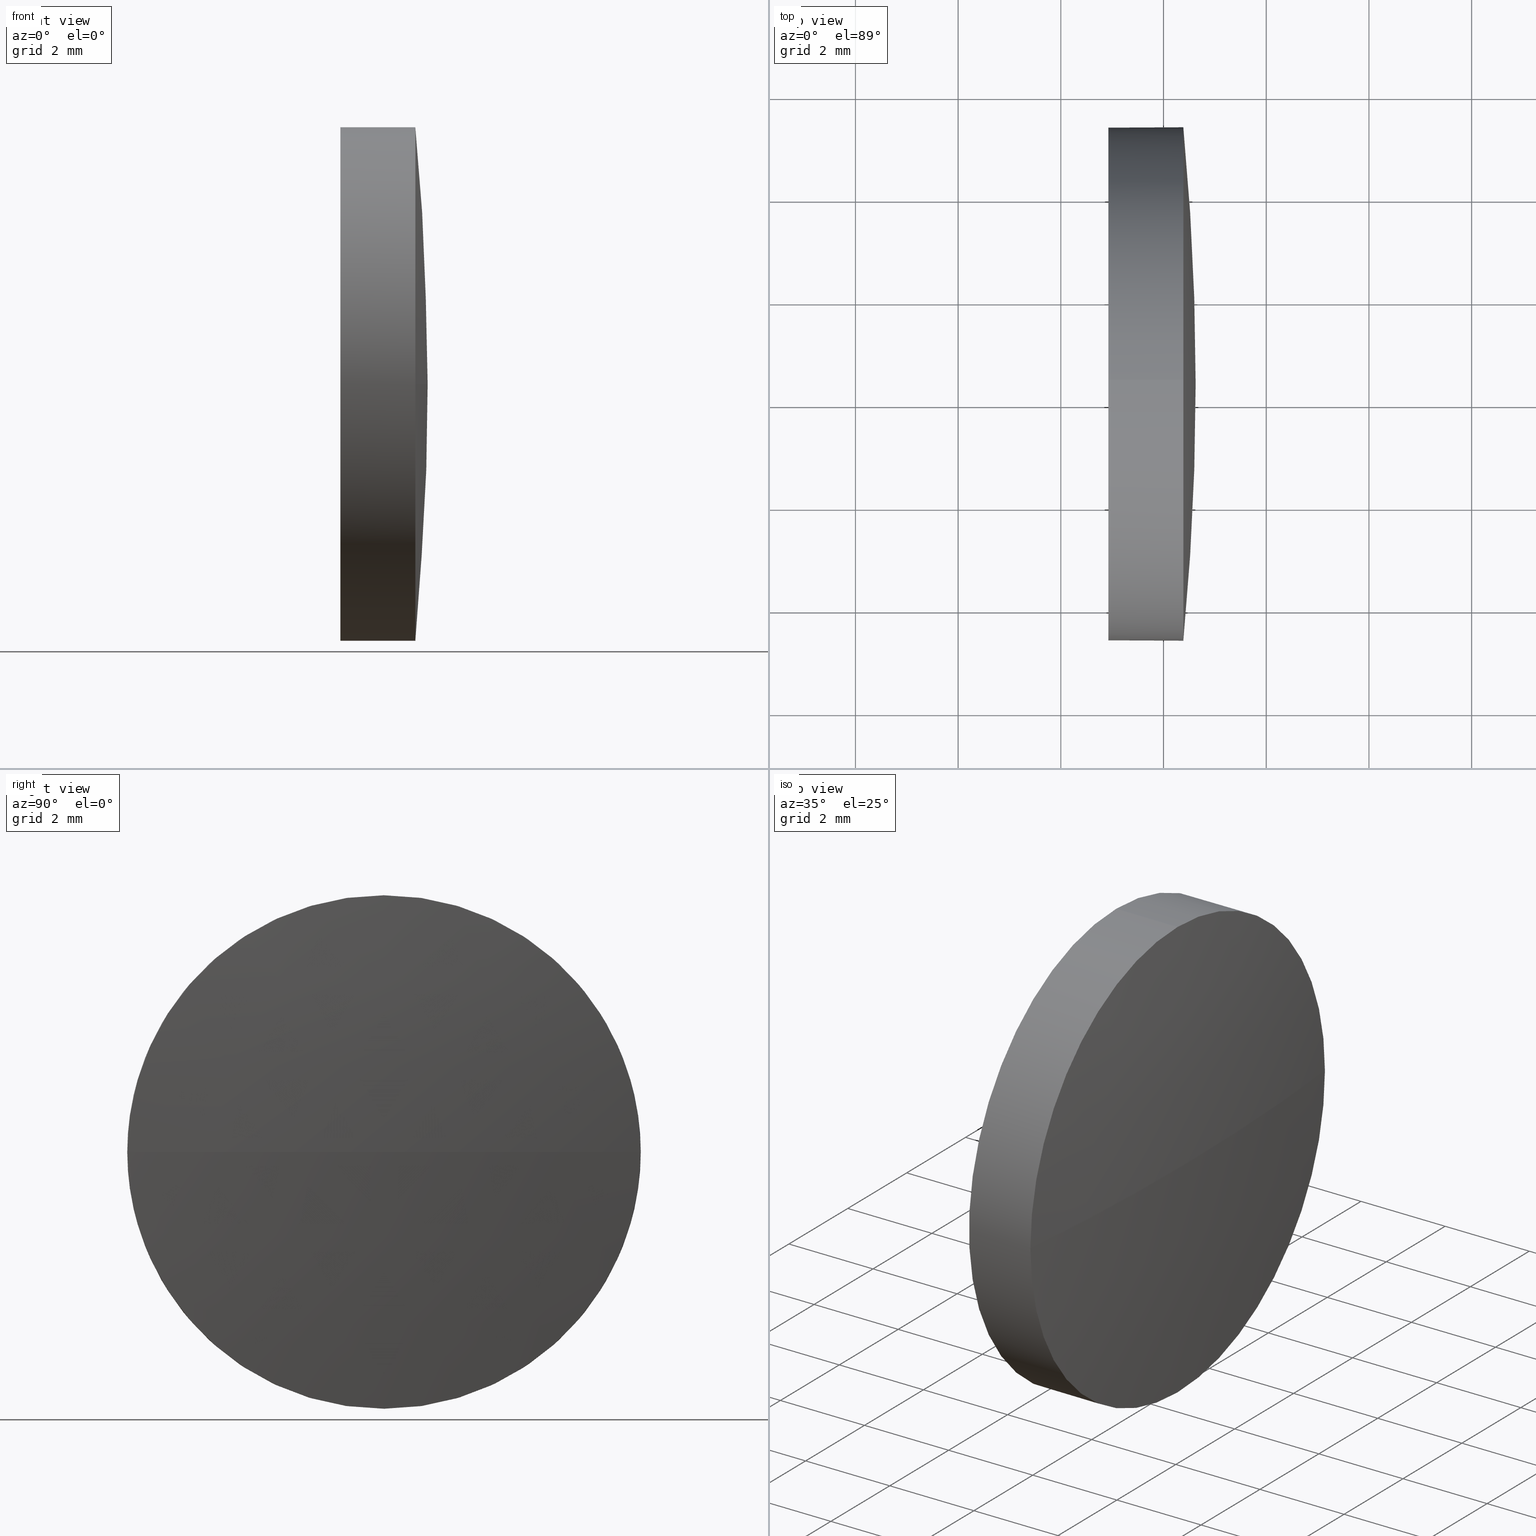
[diagram: canonical four-view strip — front | top / right | iso, engineering-drawing reading convention]
A machine part, canonical four-view strip (front | top / right | iso — engineering-drawing reading convention). The complete STEP part file that produces these views, byte-faithful:
ISO-10303-21;
HEADER;
FILE_DESCRIPTION (( 'STEP AP214' ),
    '1' );
FILE_NAME ('100108.STEP',
    '2019-05-14T01:18:25',
    ( '' ),
    ( '' ),
    'SwSTEP 2.0',
    'SolidWorks 2016',
    '' );
FILE_SCHEMA (( 'AUTOMOTIVE_DESIGN' ));
ENDSEC;

DATA;
#1 = AXIS2_PLACEMENT_3D ( 'NONE', #62, #94, #125 ) ;
#2 = ORIENTED_EDGE ( 'NONE', *, *, #179, .T. ) ;
#3 = CARTESIAN_POINT ( 'NONE',  ( 421.9839904776718500, 168.3692814147028700, 5.000000000000004400 ) ) ;
#4 = DIRECTION ( 'NONE',  ( 0.0000000000000000000, 1.000000000000000000, 0.0000000000000000000 ) ) ;
#5 = EDGE_CURVE ( 'NONE', #13, #111, #172, .T. ) ;
#6 = EDGE_LOOP ( 'NONE', ( #61, #147 ) ) ;
#7 = FILL_AREA_STYLE_COLOUR ( '', #102 ) ;
#8 = LINE ( 'NONE', #20, #133 ) ;
#9 =( LENGTH_UNIT ( ) NAMED_UNIT ( * ) SI_UNIT ( .MILLI., .METRE. ) );
#10 = VERTEX_POINT ( 'NONE', #74 ) ;
#11 = DIRECTION ( 'NONE',  ( -1.000000000000000000, -0.0000000000000000000, -0.0000000000000000000 ) ) ;
#12 = CARTESIAN_POINT ( 'NONE',  ( 372.4222076161130400, 168.3692814147027000, 0.0000000000000000000 ) ) ;
#13 = VERTEX_POINT ( 'NONE', #91 ) ;
#14 =( LENGTH_UNIT ( ) NAMED_UNIT ( * ) SI_UNIT ( .MILLI., .METRE. ) );
#15 = CIRCLE ( 'NONE', #58, 5.000000000000004400 ) ;
#16 = EDGE_CURVE ( 'NONE', #71, #160, #50, .T. ) ;
#17 = SHAPE_DEFINITION_REPRESENTATION ( #100, #186 ) ;
#18 = AXIS2_PLACEMENT_3D ( 'NONE', #124, #11, #165 ) ;
#19 = ORIENTED_EDGE ( 'NONE', *, *, #16, .F. ) ;
#20 = CARTESIAN_POINT ( 'NONE',  ( 421.9839904776718500, 168.3692814147028700, -5.000000000000004400 ) ) ;
#21 = CARTESIAN_POINT ( 'NONE',  ( 372.4222076161130400, 168.3692814147027000, 0.0000000000000000000 ) ) ;
#22 = DIRECTION ( 'NONE',  ( -1.000000000000000000, -0.0000000000000000000, -0.0000000000000000000 ) ) ;
#23 = CARTESIAN_POINT ( 'NONE',  ( 422.9255409494463700, 168.3692814147028700, 0.0000000000000000000 ) ) ;
#24 = CIRCLE ( 'NONE', #173, 52.20333333333326900 ) ;
#25 = DIRECTION ( 'NONE',  ( 0.0000000000000000000, 0.0000000000000000000, -1.000000000000000000 ) ) ;
#26 = AXIS2_PLACEMENT_3D ( 'NONE', #104, #163, #4 ) ;
#27 = CIRCLE ( 'NONE', #18, 5.000000000000004400 ) ;
#28 = ORIENTED_EDGE ( 'NONE', *, *, #60, .T. ) ;
#29 = APPLICATION_PROTOCOL_DEFINITION ( 'draft international standard', 'automotive_design', 1998, #143 ) ;
#30 = ADVANCED_FACE ( 'NONE', ( #78 ), #121, .T. ) ;
#31 = FACE_OUTER_BOUND ( 'NONE', #174, .T. ) ;
#32 = AXIS2_PLACEMENT_3D ( 'NONE', #21, #138, #141 ) ;
#33 = MANIFOLD_SOLID_BREP ( '��ת1', #162 ) ;
#34 = ORIENTED_EDGE ( 'NONE', *, *, #16, .T. ) ;
#35 = PRODUCT_DEFINITION_FORMATION_WITH_SPECIFIED_SOURCE ( '�κ�', '', #38, .NOT_KNOWN. ) ;
#36 = CARTESIAN_POINT ( 'NONE',  ( 424.6255409494463000, 168.3692814147027000, 0.0000000000000000000 ) ) ;
#37 = CARTESIAN_POINT ( 'NONE',  ( 422.9255409494463700, 168.3692814147028700, -5.000000000000004400 ) ) ;
#38 = PRODUCT ( '100108', '100108', '', ( #66 ) ) ;
#39 = DIRECTION ( 'NONE',  ( -1.000000000000000000, -0.0000000000000000000, -0.0000000000000000000 ) ) ;
#40 =( NAMED_UNIT ( * ) PLANE_ANGLE_UNIT ( ) SI_UNIT ( $, .RADIAN. ) );
#41 = DIRECTION ( 'NONE',  ( 0.0000000000000000000, 0.0000000000000000000, 1.000000000000000000 ) ) ;
#42 = VECTOR ( 'NONE', #145, 1000.000000000000000 ) ;
#43 = EDGE_CURVE ( 'NONE', #111, #176, #184, .T. ) ;
#44 = ORIENTED_EDGE ( 'NONE', *, *, #103, .F. ) ;
#45 = PRODUCT_DEFINITION_CONTEXT ( 'detailed design', #112, 'design' ) ;
#46 = EDGE_CURVE ( 'NONE', #71, #176, #8, .T. ) ;
#47 = DIRECTION ( 'NONE',  ( -1.000000000000000000, -0.0000000000000000000, -0.0000000000000000000 ) ) ;
#48 = EDGE_CURVE ( 'NONE', #106, #160, #24, .T. ) ;
#49 = SURFACE_STYLE_USAGE ( .BOTH. , #177 ) ;
#50 = CIRCLE ( 'NONE', #126, 5.000000000000004400 ) ;
#51 = DIRECTION ( 'NONE',  ( -1.000000000000000000, -0.0000000000000000000, -0.0000000000000000000 ) ) ;
#52 = CARTESIAN_POINT ( 'NONE',  ( 421.9839904776718500, 168.3692814147028700, 0.0000000000000000000 ) ) ;
#53 = CARTESIAN_POINT ( 'NONE',  ( 424.3855409494462900, 163.3692814147027000, -6.123233995736758400E-016 ) ) ;
#54 =( NAMED_UNIT ( * ) SI_UNIT ( $, .STERADIAN. ) SOLID_ANGLE_UNIT ( ) );
#55 = ORIENTED_EDGE ( 'NONE', *, *, #75, .F. ) ;
#56 = CIRCLE ( 'NONE', #1, 5.000000000000004400 ) ;
#57 = FACE_OUTER_BOUND ( 'NONE', #129, .T. ) ;
#58 = AXIS2_PLACEMENT_3D ( 'NONE', #107, #166, #139 ) ;
#59 = AXIS2_PLACEMENT_3D ( 'NONE', #158, #113, #114 ) ;
#60 = EDGE_CURVE ( 'NONE', #13, #10, #56, .T. ) ;
#61 = ORIENTED_EDGE ( 'NONE', *, *, #43, .T. ) ;
#62 = CARTESIAN_POINT ( 'NONE',  ( 424.3855409494462900, 168.3692814147028700, 0.0000000000000000000 ) ) ;
#63 = DIRECTION ( 'NONE',  ( 0.0000000000000000000, 0.0000000000000000000, 1.000000000000000000 ) ) ;
#64 = PLANE ( 'NONE',  #76 ) ;
#65 = AXIS2_PLACEMENT_3D ( 'NONE', #52, #51, #63 ) ;
#66 = PRODUCT_CONTEXT ( 'NONE', #143, 'mechanical' ) ;
#67 = ADVANCED_FACE ( 'NONE', ( #31 ), #120, .T. ) ;
#68 = ORIENTED_EDGE ( 'NONE', *, *, #103, .T. ) ;
#69 = ADVANCED_FACE ( 'NONE', ( #164 ), #87, .T. ) ;
#70 = STYLED_ITEM ( 'NONE', ( #149 ), #33 ) ;
#71 = VERTEX_POINT ( 'NONE', #136 ) ;
#72 = UNCERTAINTY_MEASURE_WITH_UNIT (LENGTH_MEASURE( 1.000000000000000100E-005 ), #9, 'distance_accuracy_value', 'NONE');
#73 =( GEOMETRIC_REPRESENTATION_CONTEXT ( 3 ) GLOBAL_UNCERTAINTY_ASSIGNED_CONTEXT ( ( #99 ) ) GLOBAL_UNIT_ASSIGNED_CONTEXT ( ( #14, #86, #54 ) ) REPRESENTATION_CONTEXT ( 'NONE', 'WORKASPACE' ) );
#74 = CARTESIAN_POINT ( 'NONE',  ( 424.3855409494462900, 173.3692814147028700, 0.0000000000000000000 ) ) ;
#75 = EDGE_CURVE ( 'NONE', #10, #71, #27, .T. ) ;
#76 = AXIS2_PLACEMENT_3D ( 'NONE', #175, #80, #25 ) ;
#77 = AXIS2_PLACEMENT_3D ( 'NONE', #12, #108, #79 ) ;
#78 = FACE_OUTER_BOUND ( 'NONE', #88, .T. ) ;
#79 = DIRECTION ( 'NONE',  ( 1.000000000000000000, 0.0000000000000000000, 0.0000000000000000000 ) ) ;
#80 = DIRECTION ( 'NONE',  ( 1.000000000000000000, 0.0000000000000000000, 0.0000000000000000000 ) ) ;
#81 = PRODUCT_RELATED_PRODUCT_CATEGORY ( 'part', '', ( #38 ) ) ;
#82 = CARTESIAN_POINT ( 'NONE',  ( 421.9839904776718500, 168.3692814147028700, 0.0000000000000000000 ) ) ;
#83 = PRESENTATION_STYLE_ASSIGNMENT (( #159 ) ) ;
#84 = PRESENTATION_LAYER_ASSIGNMENT (  '', '', ( #70 ) ) ;
#85 = DIRECTION ( 'NONE',  ( 0.0000000000000000000, 0.0000000000000000000, 1.000000000000000000 ) ) ;
#86 =( NAMED_UNIT ( * ) PLANE_ANGLE_UNIT ( ) SI_UNIT ( $, .RADIAN. ) );
#87 = CYLINDRICAL_SURFACE ( 'NONE', #65, 5.000000000000004400 ) ;
#88 = EDGE_LOOP ( 'NONE', ( #115, #68, #181, #90 ) ) ;
#89 = CIRCLE ( 'NONE', #59, 5.000000000000004400 ) ;
#90 = ORIENTED_EDGE ( 'NONE', *, *, #179, .F. ) ;
#91 = CARTESIAN_POINT ( 'NONE',  ( 424.3855409494462900, 168.3692814147028700, 5.000000000000004400 ) ) ;
#92 = ORIENTED_EDGE ( 'NONE', *, *, #75, .T. ) ;
#93 = DIRECTION ( 'NONE',  ( -1.000000000000000000, -0.0000000000000000000, -0.0000000000000000000 ) ) ;
#94 = DIRECTION ( 'NONE',  ( -1.000000000000000000, -0.0000000000000000000, -0.0000000000000000000 ) ) ;
#95 = EDGE_CURVE ( 'NONE', #176, #111, #15, .T. ) ;
#96 = SURFACE_SIDE_STYLE ('',( #132 ) ) ;
#97 = SURFACE_STYLE_FILL_AREA ( #119 ) ;
#98 = DIRECTION ( 'NONE',  ( 1.000000000000000000, 0.0000000000000000000, 0.0000000000000000000 ) ) ;
#99 = UNCERTAINTY_MEASURE_WITH_UNIT (LENGTH_MEASURE( 1.000000000000000100E-005 ), #14, 'distance_accuracy_value', 'NONE');
#100 = PRODUCT_DEFINITION_SHAPE ( 'NONE', 'NONE',  #155 ) ;
#101 = PRESENTATION_LAYER_ASSIGNMENT (  '', '', ( #137 ) ) ;
#102 = COLOUR_RGB ( '',1.000000000000000000, 1.000000000000000000, 1.000000000000000000 ) ;
#103 = EDGE_CURVE ( 'NONE', #106, #10, #161, .T. ) ;
#104 = CARTESIAN_POINT ( 'NONE',  ( 372.4222076161130400, 168.3692814147027000, 0.0000000000000000000 ) ) ;
#105 = MECHANICAL_DESIGN_GEOMETRIC_PRESENTATION_REPRESENTATION (  '', ( #137 ), #128 ) ;
#106 = VERTEX_POINT ( 'NONE', #36 ) ;
#107 = CARTESIAN_POINT ( 'NONE',  ( 422.9255409494463700, 168.3692814147028700, 0.0000000000000000000 ) ) ;
#108 = DIRECTION ( 'NONE',  ( -0.0000000000000000000, 0.0000000000000000000, 1.000000000000000000 ) ) ;
#109 = CARTESIAN_POINT ( 'NONE',  ( 372.4222076161130400, 168.3692814147027000, 0.0000000000000000000 ) ) ;
#110 = MECHANICAL_DESIGN_GEOMETRIC_PRESENTATION_REPRESENTATION (  '', ( #70 ), #151 ) ;
#111 = VERTEX_POINT ( 'NONE', #157 ) ;
#112 = APPLICATION_CONTEXT ( 'automotive_design' ) ;
#113 = DIRECTION ( 'NONE',  ( -1.000000000000000000, -0.0000000000000000000, -0.0000000000000000000 ) ) ;
#114 = DIRECTION ( 'NONE',  ( 0.0000000000000000000, 0.0000000000000000000, 1.000000000000000000 ) ) ;
#115 = ORIENTED_EDGE ( 'NONE', *, *, #48, .F. ) ;
#116 = ADVANCED_FACE ( 'NONE', ( #140 ), #64, .F. ) ;
#117 = AXIS2_PLACEMENT_3D ( 'NONE', #82, #39, #85 ) ;
#118 = ORIENTED_EDGE ( 'NONE', *, *, #46, .F. ) ;
#119 = FILL_AREA_STYLE ('',( #7 ) ) ;
#120 = SPHERICAL_SURFACE ( 'NONE', #32, 52.20333333333326900 ) ;
#121 = SPHERICAL_SURFACE ( 'NONE', #26, 52.20333333333326900 ) ;
#122 = AXIS2_PLACEMENT_3D ( 'NONE', #23, #22, #156 ) ;
#123 = ORIENTED_EDGE ( 'NONE', *, *, #5, .F. ) ;
#124 = CARTESIAN_POINT ( 'NONE',  ( 424.3855409494462900, 168.3692814147028700, 0.0000000000000000000 ) ) ;
#125 = DIRECTION ( 'NONE',  ( 0.0000000000000000000, 0.0000000000000000000, 1.000000000000000000 ) ) ;
#126 = AXIS2_PLACEMENT_3D ( 'NONE', #134, #47, #152 ) ;
#127 = DIRECTION ( 'NONE',  ( 0.0000000000000000000, 1.000000000000000000, 1.224646799147353200E-016 ) ) ;
#128 =( GEOMETRIC_REPRESENTATION_CONTEXT ( 3 ) GLOBAL_UNCERTAINTY_ASSIGNED_CONTEXT ( ( #178 ) ) GLOBAL_UNIT_ASSIGNED_CONTEXT ( ( #185, #40, #142 ) ) REPRESENTATION_CONTEXT ( 'NONE', 'WORKASPACE' ) );
#129 = EDGE_LOOP ( 'NONE', ( #92, #131, #150, #123, #28 ) ) ;
#130 = FILL_AREA_STYLE_COLOUR ( '', #167 ) ;
#131 = ORIENTED_EDGE ( 'NONE', *, *, #46, .T. ) ;
#132 = SURFACE_STYLE_FILL_AREA ( #182 ) ;
#133 = VECTOR ( 'NONE', #93, 1000.000000000000000 ) ;
#134 = CARTESIAN_POINT ( 'NONE',  ( 424.3855409494462900, 168.3692814147028700, 0.0000000000000000000 ) ) ;
#135 = ORIENTED_EDGE ( 'NONE', *, *, #5, .T. ) ;
#136 = CARTESIAN_POINT ( 'NONE',  ( 424.3855409494462900, 168.3692814147028700, -5.000000000000004400 ) ) ;
#137 = STYLED_ITEM ( 'NONE', ( #83 ), #186 ) ;
#138 = DIRECTION ( 'NONE',  ( -0.0000000000000000000, 0.0000000000000000000, -1.000000000000000000 ) ) ;
#139 = DIRECTION ( 'NONE',  ( 0.0000000000000000000, 0.0000000000000000000, 1.000000000000000000 ) ) ;
#140 = FACE_OUTER_BOUND ( 'NONE', #6, .T. ) ;
#141 = DIRECTION ( 'NONE',  ( 0.0000000000000000000, 1.000000000000000000, 0.0000000000000000000 ) ) ;
#142 =( NAMED_UNIT ( * ) SI_UNIT ( $, .STERADIAN. ) SOLID_ANGLE_UNIT ( ) );
#143 = APPLICATION_CONTEXT ( 'automotive_design' ) ;
#144 = EDGE_LOOP ( 'NONE', ( #118, #34, #2, #135, #169 ) ) ;
#145 = DIRECTION ( 'NONE',  ( -1.000000000000000000, -0.0000000000000000000, -0.0000000000000000000 ) ) ;
#146 = CYLINDRICAL_SURFACE ( 'NONE', #117, 5.000000000000004400 ) ;
#147 = ORIENTED_EDGE ( 'NONE', *, *, #95, .T. ) ;
#148 = AXIS2_PLACEMENT_3D ( 'NONE', #168, #41, #98 ) ;
#149 = PRESENTATION_STYLE_ASSIGNMENT (( #49 ) ) ;
#150 = ORIENTED_EDGE ( 'NONE', *, *, #43, .F. ) ;
#151 =( GEOMETRIC_REPRESENTATION_CONTEXT ( 3 ) GLOBAL_UNCERTAINTY_ASSIGNED_CONTEXT ( ( #72 ) ) GLOBAL_UNIT_ASSIGNED_CONTEXT ( ( #9, #153, #180 ) ) REPRESENTATION_CONTEXT ( 'NONE', 'WORKASPACE' ) );
#152 = DIRECTION ( 'NONE',  ( 0.0000000000000000000, 0.0000000000000000000, 1.000000000000000000 ) ) ;
#153 =( NAMED_UNIT ( * ) PLANE_ANGLE_UNIT ( ) SI_UNIT ( $, .RADIAN. ) );
#154 = DIRECTION ( 'NONE',  ( 0.0000000000000000000, 1.224646799147353200E-016, -1.000000000000000000 ) ) ;
#155 = PRODUCT_DEFINITION ( 'δ֪', '', #35, #45 ) ;
#156 = DIRECTION ( 'NONE',  ( 0.0000000000000000000, 0.0000000000000000000, 1.000000000000000000 ) ) ;
#157 = CARTESIAN_POINT ( 'NONE',  ( 422.9255409494463700, 168.3692814147028700, 5.000000000000004400 ) ) ;
#158 = CARTESIAN_POINT ( 'NONE',  ( 424.3855409494462900, 168.3692814147028700, 0.0000000000000000000 ) ) ;
#159 = SURFACE_STYLE_USAGE ( .BOTH. , #96 ) ;
#160 = VERTEX_POINT ( 'NONE', #53 ) ;
#161 = CIRCLE ( 'NONE', #77, 52.20333333333326900 ) ;
#162 = CLOSED_SHELL ( 'NONE', ( #183, #67, #30, #69, #116 ) ) ;
#163 = DIRECTION ( 'NONE',  ( -0.0000000000000000000, 0.0000000000000000000, -1.000000000000000000 ) ) ;
#164 = FACE_OUTER_BOUND ( 'NONE', #144, .T. ) ;
#165 = DIRECTION ( 'NONE',  ( 0.0000000000000000000, 0.0000000000000000000, 1.000000000000000000 ) ) ;
#166 = DIRECTION ( 'NONE',  ( -1.000000000000000000, -0.0000000000000000000, -0.0000000000000000000 ) ) ;
#167 = COLOUR_RGB ( '',1.000000000000000000, 1.000000000000000000, 1.000000000000000000 ) ;
#168 = CARTESIAN_POINT ( 'NONE',  ( 0.0000000000000000000, 0.0000000000000000000, 0.0000000000000000000 ) ) ;
#169 = ORIENTED_EDGE ( 'NONE', *, *, #95, .F. ) ;
#170 = APPLICATION_PROTOCOL_DEFINITION ( 'draft international standard', 'automotive_design', 1998, #112 ) ;
#171 = ORIENTED_EDGE ( 'NONE', *, *, #48, .T. ) ;
#172 = LINE ( 'NONE', #3, #42 ) ;
#173 = AXIS2_PLACEMENT_3D ( 'NONE', #109, #154, #127 ) ;
#174 = EDGE_LOOP ( 'NONE', ( #44, #171, #19, #55 ) ) ;
#175 = CARTESIAN_POINT ( 'NONE',  ( 422.9255409494463700, 168.3692814147028700, 0.0000000000000000000 ) ) ;
#176 = VERTEX_POINT ( 'NONE', #37 ) ;
#177 = SURFACE_SIDE_STYLE ('',( #97 ) ) ;
#178 = UNCERTAINTY_MEASURE_WITH_UNIT (LENGTH_MEASURE( 1.000000000000000100E-005 ), #185, 'distance_accuracy_value', 'NONE');
#179 = EDGE_CURVE ( 'NONE', #160, #13, #89, .T. ) ;
#180 =( NAMED_UNIT ( * ) SI_UNIT ( $, .STERADIAN. ) SOLID_ANGLE_UNIT ( ) );
#181 = ORIENTED_EDGE ( 'NONE', *, *, #60, .F. ) ;
#182 = FILL_AREA_STYLE ('',( #130 ) ) ;
#183 = ADVANCED_FACE ( 'NONE', ( #57 ), #146, .T. ) ;
#184 = CIRCLE ( 'NONE', #122, 5.000000000000004400 ) ;
#185 =( LENGTH_UNIT ( ) NAMED_UNIT ( * ) SI_UNIT ( .MILLI., .METRE. ) );
#186 = ADVANCED_BREP_SHAPE_REPRESENTATION ( '100108', ( #33, #148 ), #73 ) ;
ENDSEC;
END-ISO-10303-21;
